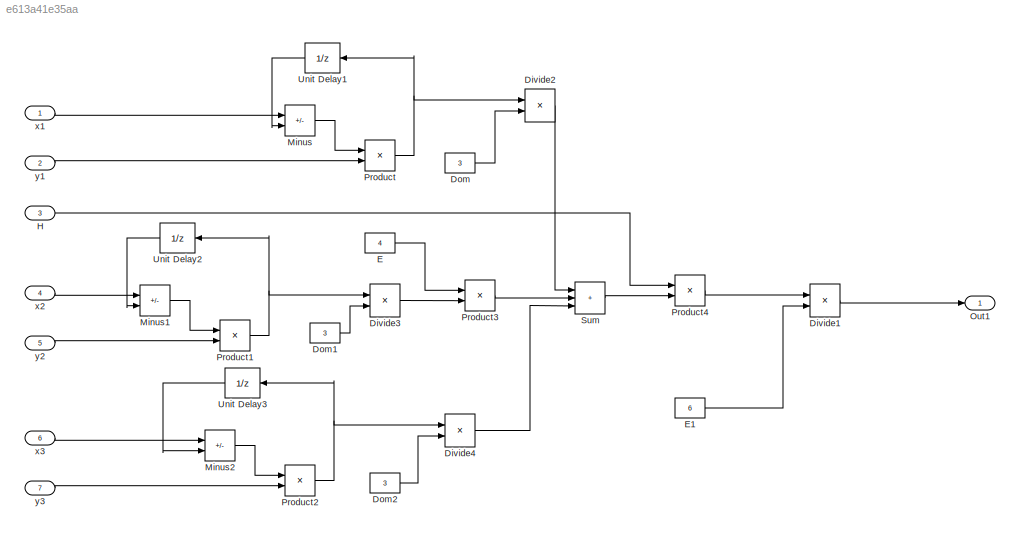
MODEL slx_e613a41e35aa
KIND model
CONFIG AbsTol = auto
CONFIG EnableMultiTasking = off
CONFIG FixedStep = auto
CONFIG MaxStep = auto
CONFIG MinStep = auto
CONFIG RelTol = 1e-3
CONFIG SampleTimeConstraint = Unconstrained
CONFIG SolverName = FixedStepAuto
CONFIG StartTime = 0.0
CONFIG StopTime = 10.0
BLOCK [Product] Divide1
  Inputs = */
  OutDataTypeStr = int32
BLOCK [Product] Divide2
  Inputs = */
  OutDataTypeStr = int32
BLOCK [Product] Divide3
  Inputs = */
  OutDataTypeStr = int32
BLOCK [Product] Divide4
  Inputs = */
  OutDataTypeStr = int32
BLOCK [Constant] Dom
  OutDataTypeStr = int32
  Value = 3
BLOCK [Constant] Dom1
  OutDataTypeStr = int32
  Value = 3
BLOCK [Constant] Dom2
  OutDataTypeStr = int32
  Value = 3
BLOCK [Constant] E
  OutDataTypeStr = int32
  Value = 4
BLOCK [Constant] E1
  OutDataTypeStr = int32
  Value = 6
BLOCK [Inport] H
  OutDataTypeStr = int32
  Port = 3
BLOCK [Sum] Minus
  IconShape = rectangular
  Inputs = +-
BLOCK [Sum] Minus1
  IconShape = rectangular
  Inputs = +-
BLOCK [Sum] Minus2
  IconShape = rectangular
  Inputs = +-
BLOCK [Outport] Out1
BLOCK [Product] Product
  OutDataTypeStr = int32
BLOCK [Product] Product1
  OutDataTypeStr = int32
BLOCK [Product] Product2
  OutDataTypeStr = int32
BLOCK [Product] Product3
  OutDataTypeStr = int32
BLOCK [Product] Product4
  OutDataTypeStr = int32
BLOCK [Sum] Sum
  IconShape = rectangular
  Inputs = +++
BLOCK [UnitDelay] Unit Delay1
  HasFrameUpgradeWarning = on
  SampleTime = -1
BLOCK [UnitDelay] Unit Delay2
  HasFrameUpgradeWarning = on
  SampleTime = -1
BLOCK [UnitDelay] Unit Delay3
  HasFrameUpgradeWarning = on
  SampleTime = -1
BLOCK [Inport] x1
  OutDataTypeStr = int32
BLOCK [Inport] x2
  OutDataTypeStr = int32
  Port = 4
BLOCK [Inport] x3
  OutDataTypeStr = int32
  Port = 6
BLOCK [Inport] y1
  OutDataTypeStr = int32
  Port = 2
BLOCK [Inport] y2
  OutDataTypeStr = int32
  Port = 5
BLOCK [Inport] y3
  OutDataTypeStr = int32
  Port = 7
LINE Divide1:1 -> Out1:1
LINE Divide2:1 -> Sum:1
LINE Divide3:1 -> Product3:2
LINE Divide4:1 -> Sum:3
LINE Dom1:1 -> Divide3:2
LINE Dom2:1 -> Divide4:2
LINE Dom:1 -> Divide2:2
LINE E1:1 -> Divide1:2
LINE E:1 -> Product3:1
LINE H:1 -> Product4:1
LINE Minus1:1 -> Product1:1
LINE Minus2:1 -> Product2:1
LINE Minus:1 -> Product:1
NET Product1:1 -> Divide3:1, Unit Delay2:1
NET Product2:1 -> Divide4:1, Unit Delay3:1
LINE Product3:1 -> Sum:2
LINE Product4:1 -> Divide1:1
NET Product:1 -> Divide2:1, Unit Delay1:1
LINE Sum:1 -> Product4:2
LINE Unit Delay1:1 -> Minus:2
LINE Unit Delay2:1 -> Minus1:2
LINE Unit Delay3:1 -> Minus2:2
LINE x1:1 -> Minus:1
LINE x2:1 -> Minus1:1
LINE x3:1 -> Minus2:1
LINE y1:1 -> Product:2
LINE y2:1 -> Product1:2
LINE y3:1 -> Product2:2
note: NET lines group one-source signal fan-out (src -> all destinations, sorted); 1:1 wires keep LINE
